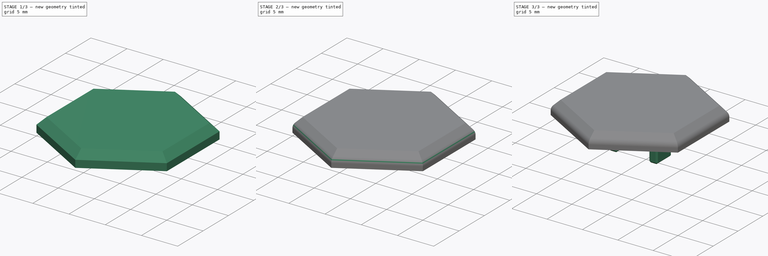
[diagram: build sequence overview — one tinted view per stage of 3, left to right]
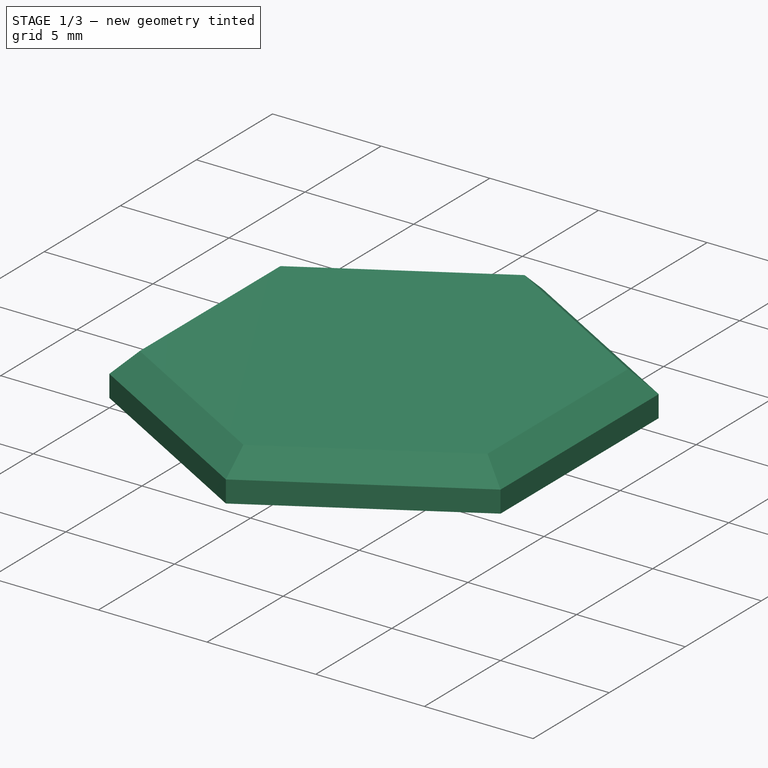
[diagram: stage 1 of 3 — iso view after this stage's code; geometry added in this stage tinted green]
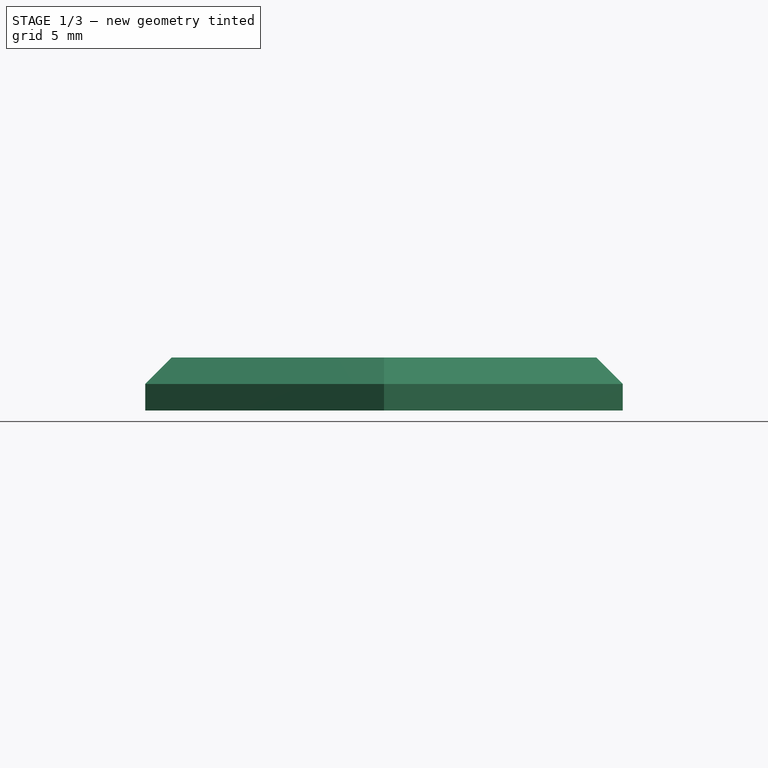
[diagram: stage 1 of 3 — front view after this stage's code; geometry added in this stage tinted green]
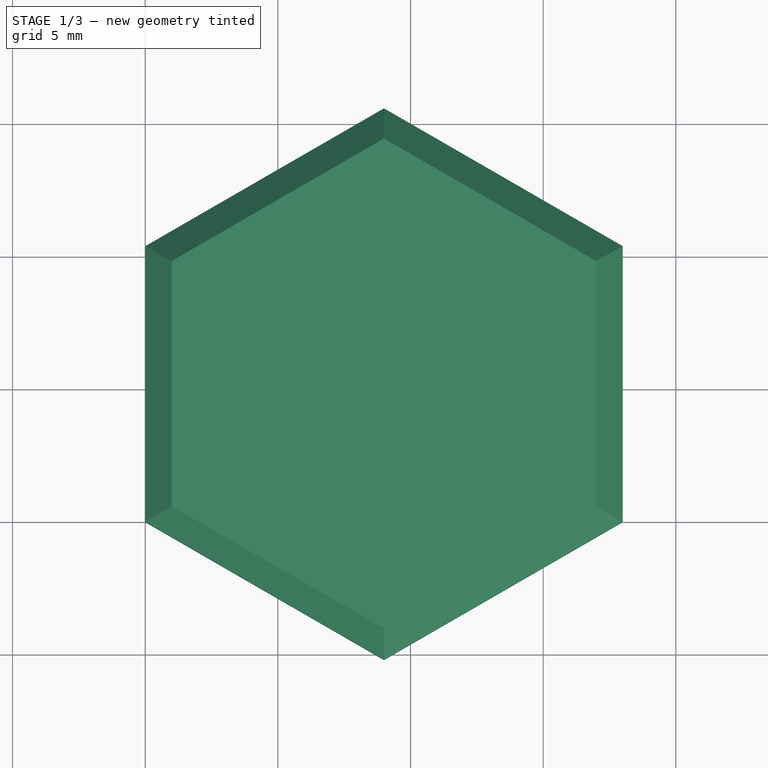
[diagram: stage 1 of 3 — top view after this stage's code; geometry added in this stage tinted green]
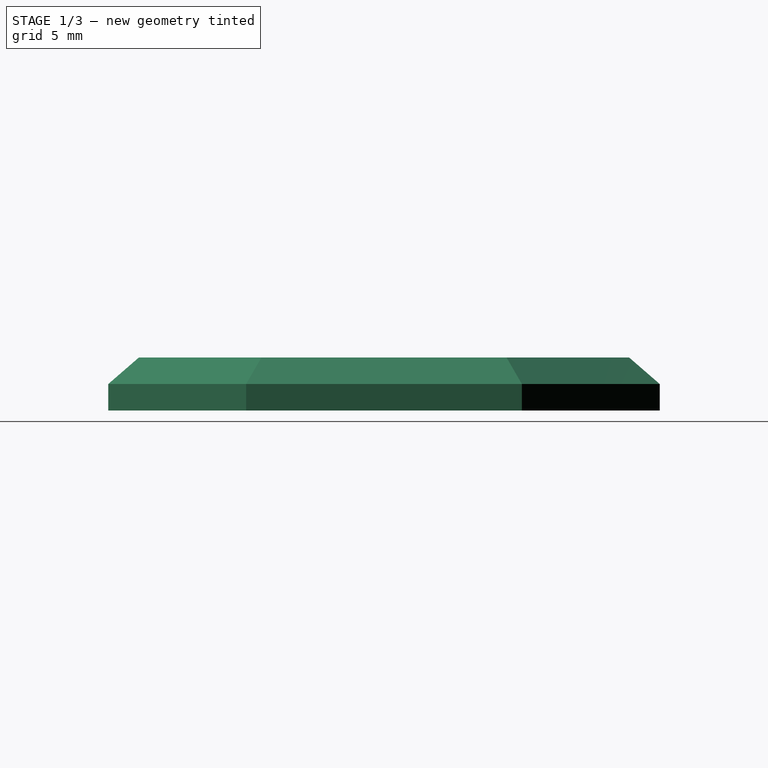
[diagram: stage 1 of 3 — right view after this stage's code; geometry added in this stage tinted green]
FCSTD DOCUMENT  (FreeCAD 0.18.4R)
Label: hex-kailh-choc
License: All rights reserved
LicenseURL: http://en.wikipedia.org/wiki/All_rights_reserved
objects: Sketcher::SketchObject×2, PartDesign::Pad×2, PartDesign::Chamfer×2, PartDesign::Fillet×1, PartDesign::Body×1
note: 10 computed .brp shape members not serialized (recipe doc carries the construction recipe); baked Part::Feature solids carry a one-line shape summary decoded from their .brp

FEATURE [Sketcher::SketchObject] Sketch
  MapMode = 5
  Support = -> [XY_Plane]
  sketch-geometry (7):
    g0: LineSegment StartX=18 StartY=2.93001e-11 StartZ=0 EndX=18 EndY=10.3923 EndZ=0
    g1: LineSegment StartX=18 StartY=10.3923 StartZ=0 EndX=9 EndY=15.5885 EndZ=0
    g2: LineSegment StartX=9 StartY=15.5885 StartZ=0 EndX=0 EndY=10.3923 EndZ=0
    g3: LineSegment StartX=0 StartY=10.3923 StartZ=0 EndX=0 EndY=0 EndZ=0
    g4: LineSegment StartX=0 StartY=0 StartZ=0 EndX=9 EndY=-5.19615 EndZ=0
    g5: LineSegment StartX=9 StartY=-5.19615 StartZ=0 EndX=18 EndY=2.93001e-11 EndZ=0
    g6: Circle [constr] CenterX=9 CenterY=5.19615 CenterZ=0 NormalX=0 NormalY=0 NormalZ=1 AngleXU=0 Radius=10.3923
  constraints (16):
    c: Coincident(g0,g1)
    c: Coincident(g1,g2)
    c: Coincident(g2,g3)
    c: Coincident(g3,g4)
    c: Coincident(g4,g5)
    c: Coincident(g5,g0)
    c: Equal(g0, g1-g5) x5
    c: PointOnObject(g0,g6)
    c: PointOnObject(g1,g6)
    c: PointOnObject(g2,g6)
    c: PointOnObject(g3,g6)
    c: PointOnObject(g4,g6)
    c: PointOnObject(g5,g6)
    c: Vertical(g3)
    c: Coincident(g4,g-1)
    c: Distance(g4) = 10.3923
FEATURE [PartDesign::Pad] Pad
  Length = 2
  Length2 = 100
  Profile = -> Sketch
  Type = 0
FEATURE [PartDesign::Chamfer] Chamfer
  Base = -> Pad [Edge18,Edge16,Edge4,Edge7,Edge13,Edge10]
  BaseFeature = -> Pad
  Size = 1
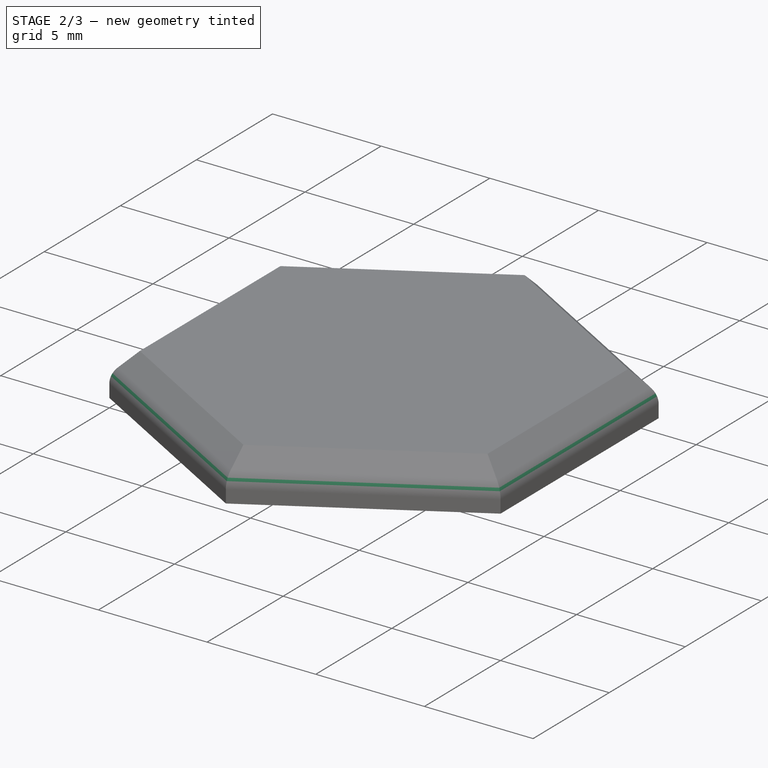
[diagram: stage 2 of 3 — iso view after this stage's code; geometry added in this stage tinted green]
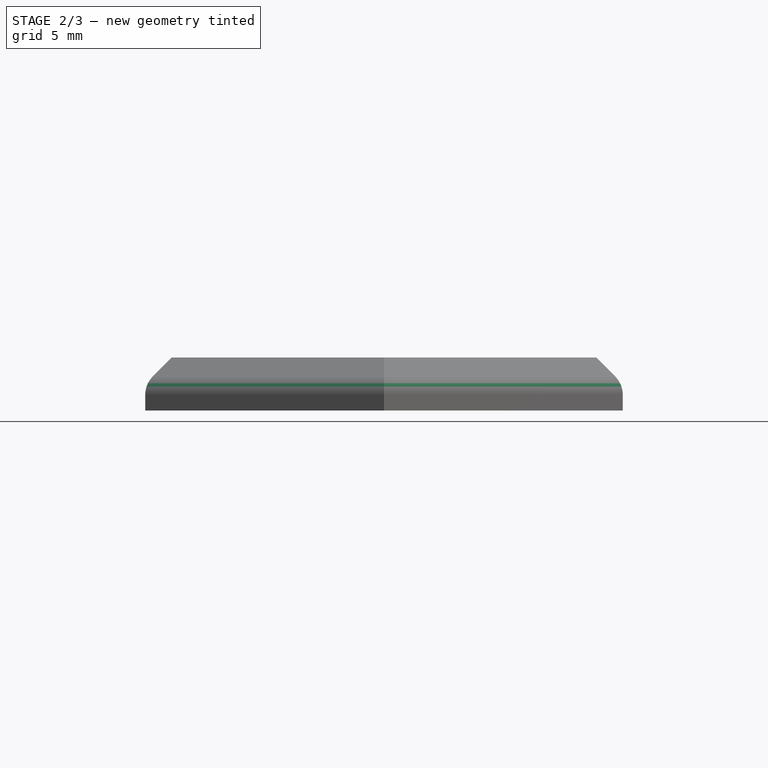
[diagram: stage 2 of 3 — front view after this stage's code; geometry added in this stage tinted green]
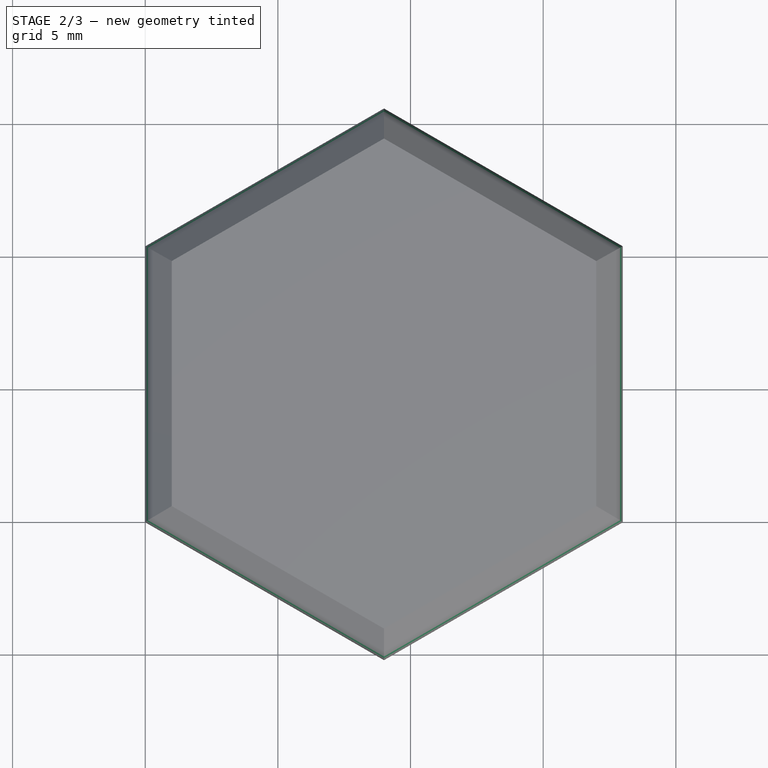
[diagram: stage 2 of 3 — top view after this stage's code; geometry added in this stage tinted green]
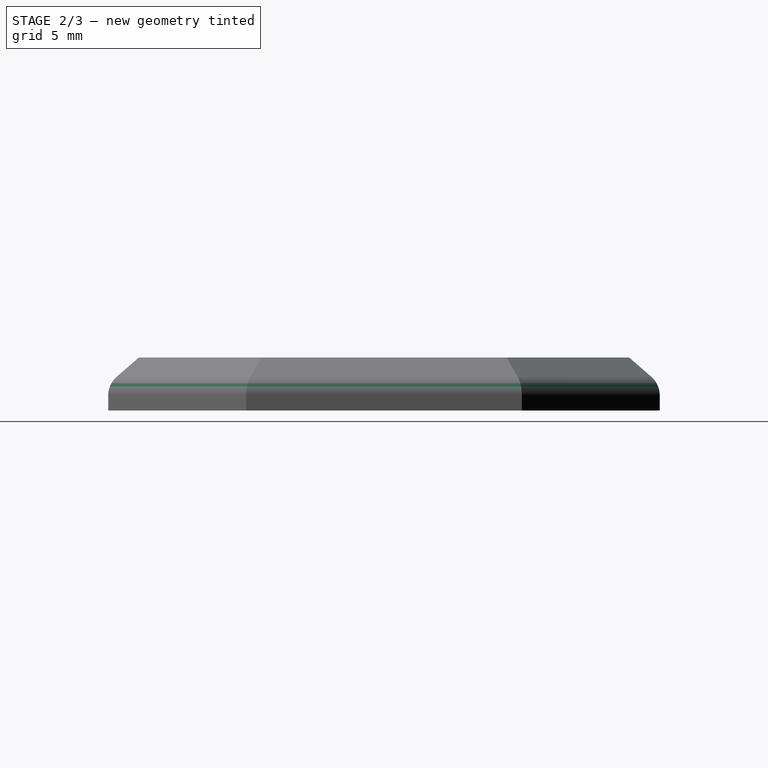
[diagram: stage 2 of 3 — right view after this stage's code; geometry added in this stage tinted green]
FEATURE [Sketcher::SketchObject] Sketch002
  MapMode = 5
  Placement = pos=(0,0,0.01) rot=(1,0,0;3.14159rad)
  sketch-geometry (17):
    g0: LineSegment StartX=5.55 StartY=-3.69615 StartZ=0 EndX=6.75 EndY=-3.69615 EndZ=0
    g1: LineSegment StartX=6.75 StartY=-3.69615 StartZ=0 EndX=6.75 EndY=-6.69615 EndZ=0
    g2: LineSegment StartX=6.75 StartY=-6.69615 StartZ=0 EndX=5.55 EndY=-6.69615 EndZ=0
    g3: LineSegment StartX=5.55 StartY=-6.69615 StartZ=0 EndX=5.55 EndY=-3.69615 EndZ=0
    g4: LineSegment StartX=11.25 StartY=-3.69615 StartZ=0 EndX=12.45 EndY=-3.69615 EndZ=0
    g5: LineSegment StartX=12.45 StartY=-3.69615 StartZ=0 EndX=12.45 EndY=-6.69615 EndZ=0
    g6: LineSegment StartX=12.45 StartY=-6.69615 StartZ=0 EndX=11.25 EndY=-6.69615 EndZ=0
    g7: LineSegment StartX=11.25 StartY=-6.69615 StartZ=0 EndX=11.25 EndY=-3.69615 EndZ=0
    g8: LineSegment [constr] StartX=1.42227 StartY=-9.57115 StartZ=0 EndX=16.5777 EndY=-0.82115 EndZ=0
    g9: LineSegment [constr] StartX=9 StartY=3.55385 StartZ=0 EndX=9 EndY=-13.9462 EndZ=0
    g10: GeomPoint X=9 Y=-5.19615 Z=0
    g11: LineSegment [constr] StartX=6.75 StartY=-3.69615 StartZ=0 EndX=6.75 EndY=-5.19615 EndZ=0
    g12: LineSegment [constr] StartX=6.75 StartY=-5.19615 StartZ=0 EndX=6.75 EndY=-6.69615 EndZ=0
    g13: LineSegment [constr] StartX=11.25 StartY=-3.69615 StartZ=0 EndX=11.25 EndY=-5.19615 EndZ=0
    g14: LineSegment [constr] StartX=11.25 StartY=-5.19615 StartZ=0 EndX=11.25 EndY=-6.69615 EndZ=0
    g15: LineSegment [constr] StartX=6.75 StartY=-5.19615 StartZ=0 EndX=9 EndY=-5.19615 EndZ=0
    g16: LineSegment [constr] StartX=9 StartY=-5.19615 StartZ=0 EndX=11.25 EndY=-5.19615 EndZ=0
  constraints (40):
    c: Coincident(g0,g1)
    c: Coincident(g1,g2)
    c: Coincident(g2,g3)
    c: Coincident(g3,g0)
    c: Horizontal(g0)
    c: Horizontal(g2)
    c: Vertical(g1)
    c: Vertical(g3)
    c: Coincident(g4,g5)
    c: Coincident(g5,g6)
    c: Coincident(g6,g7)
    c: Coincident(g7,g4)
    c: Horizontal(g4)
    c: Horizontal(g6)
    c: Vertical(g5)
    c: Vertical(g7)
    c: Distance(g2) = 1.2
    c: Distance(g1) = 3
    c: Distance(g6) = 1.2
    c: Distance(g7) = 3
    c: PointOnObject(g10,g9)
    c: PointOnObject(g10,g8)
    c: Coincident(g12,g1)
    c: Coincident(g11,g0)
    c: Coincident(g11,g12)
    c: Equal(g11,g12)
    c: Vertical(g11)
    c: Coincident(g13,g4)
    c: Coincident(g14,g6)
    c: Coincident(g13,g14)
    c: Equal(g13,g14)
    c: Vertical(g13)
    c: Coincident(g16,g13)
    c: Coincident(g16,g15)
    c: Coincident(g15,g11)
    c: Equal(g15,g16)
    c: Horizontal(g15)
    c: Coincident(g15,g10)
    c: Horizontal(g16)
    c: Distance(g15) = 2.25
FEATURE [PartDesign::Fillet] Fillet
  Base = -> Chamfer [Edge15,Edge6,Edge2,Edge18,Edge28,Edge26]
  BaseFeature = -> Chamfer
  Radius = 1
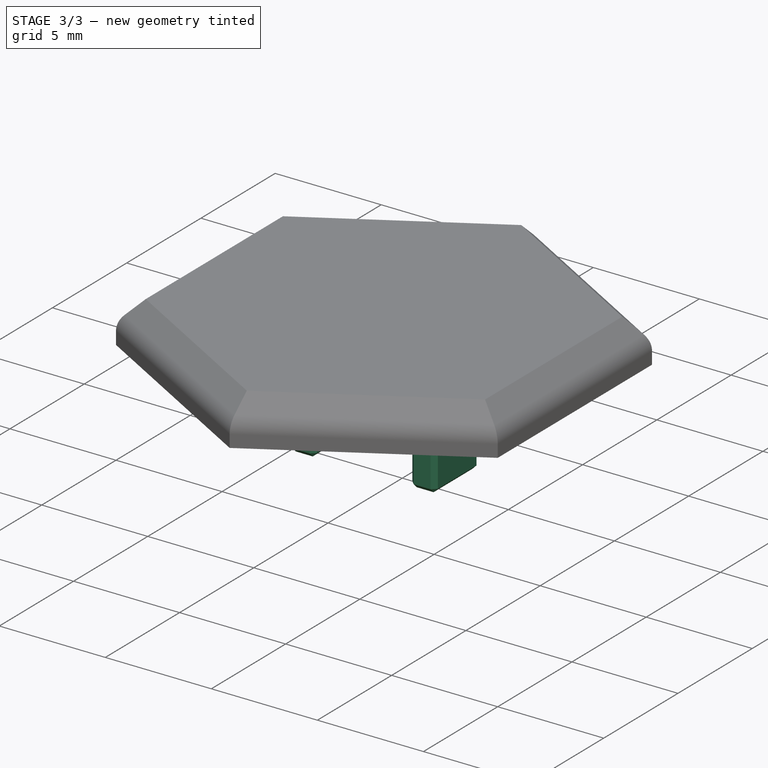
[diagram: stage 3 of 3 — iso view after this stage's code; geometry added in this stage tinted green]
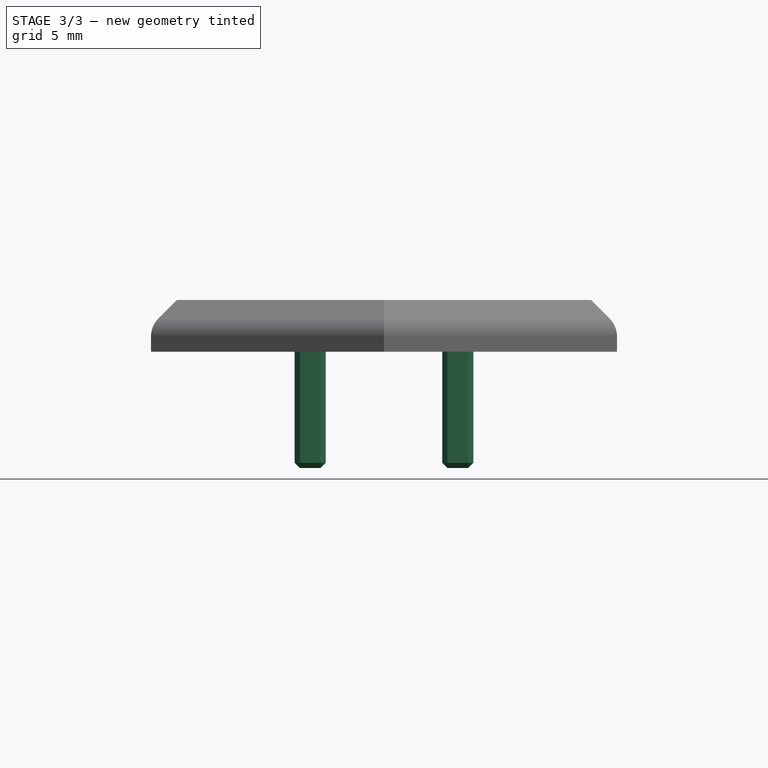
[diagram: stage 3 of 3 — front view after this stage's code; geometry added in this stage tinted green]
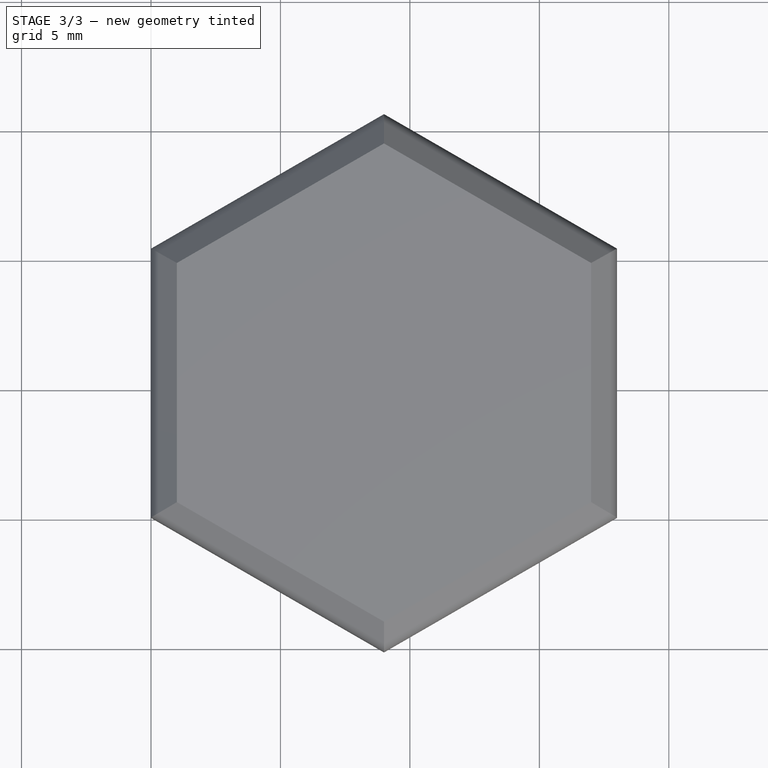
[diagram: stage 3 of 3 — top view after this stage's code; geometry added in this stage tinted green]
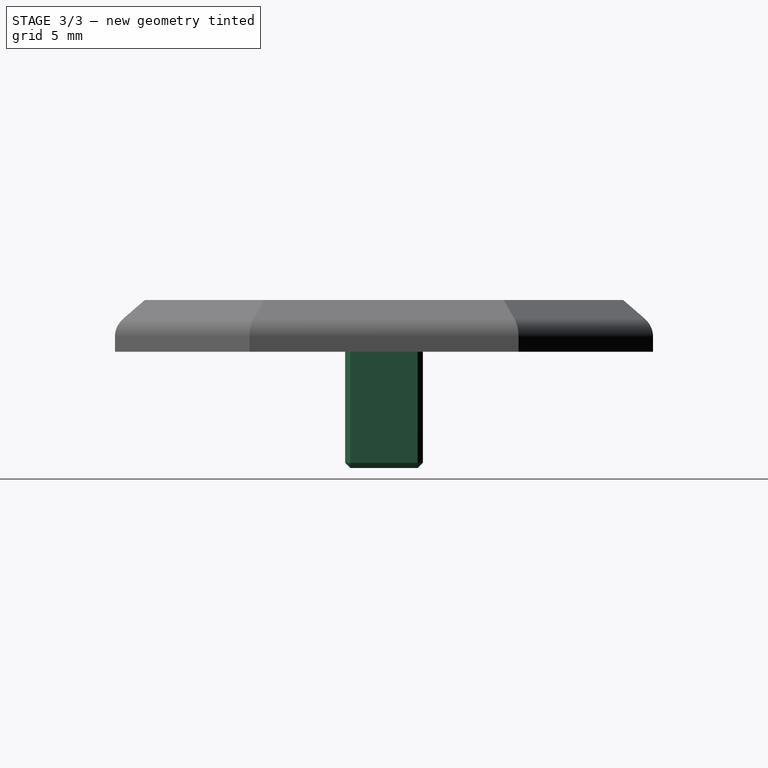
[diagram: stage 3 of 3 — right view after this stage's code; geometry added in this stage tinted green]
FEATURE [PartDesign::Pad] Pad001
  BaseFeature = -> Fillet
  Length = 4.5
  Length2 = 100
  Profile = -> Sketch002
  Type = 0
FEATURE [PartDesign::Chamfer] Chamfer001
  Base = -> Pad001 [Edge46,Edge52,Edge51,Edge49,Edge47,Edge50,Edge45,Edge48,Edge44,Edge38,Edge41,Edge43,Edge39,Edge37,Edge42,Edge40]
  BaseFeature = -> Pad001
  Size = 0.2
FEATURE [PartDesign::Body] Body  label="1"
  Group = -> [Sketch,Pad,Chamfer,Fillet,Sketch002,Pad001,Chamfer001]
  Origin = -> Origin
  Tip = -> Chamfer001
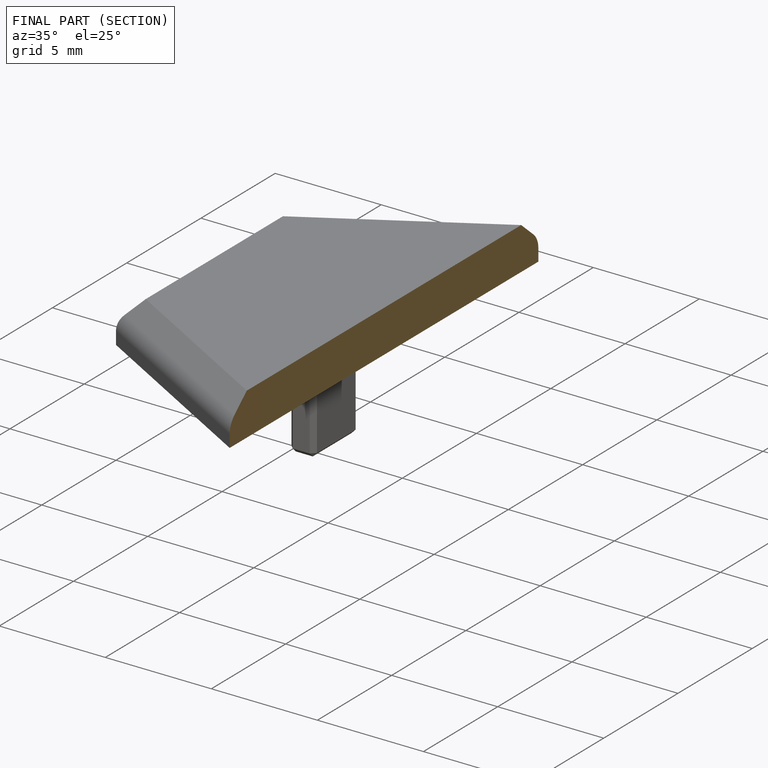
[diagram: finished part — half-section view (interior)]
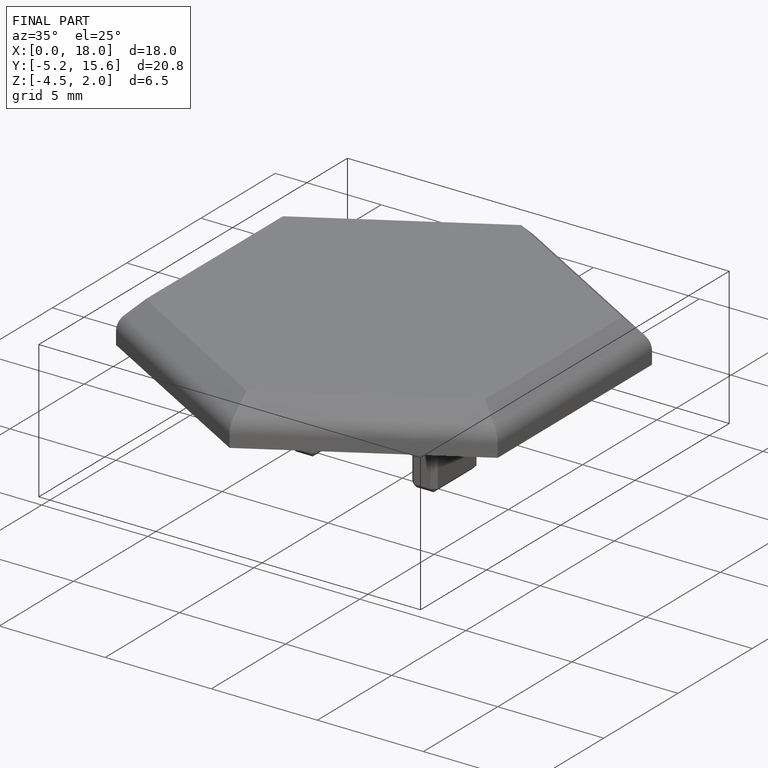
[diagram: finished part — iso view with bounding-box wireframe]
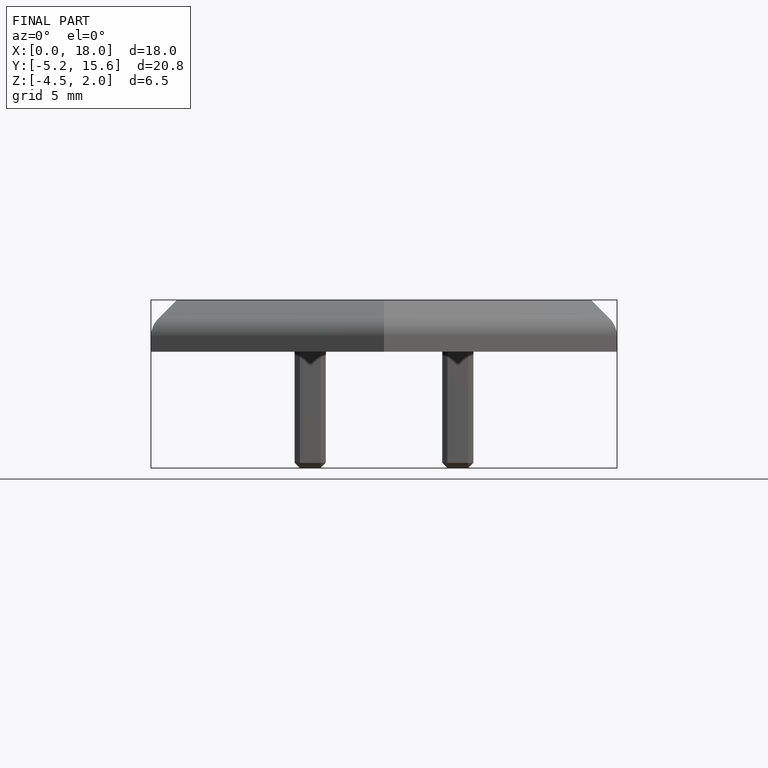
[diagram: finished part — front view with bounding-box wireframe]
